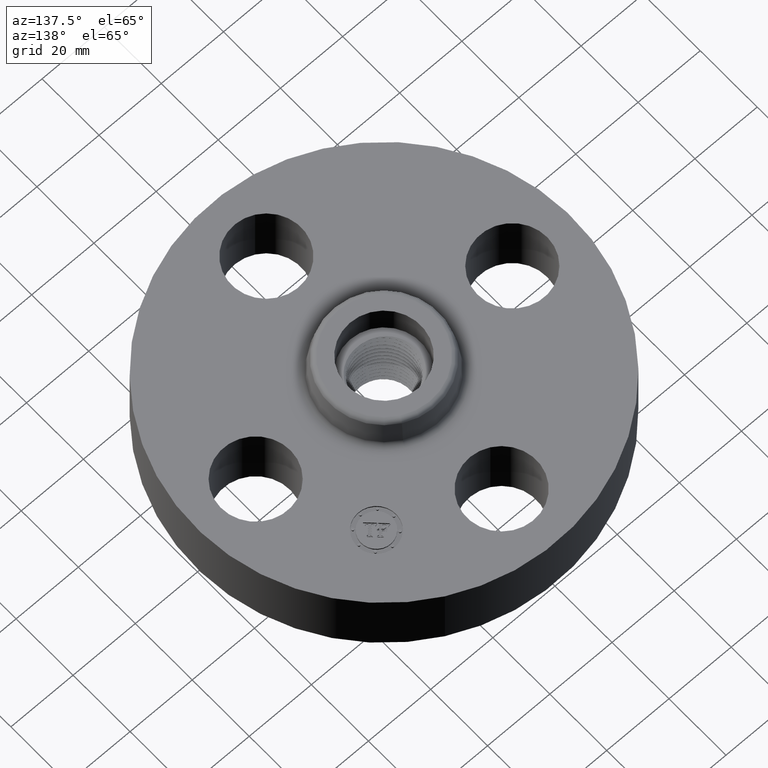
[diagram: clean part render]
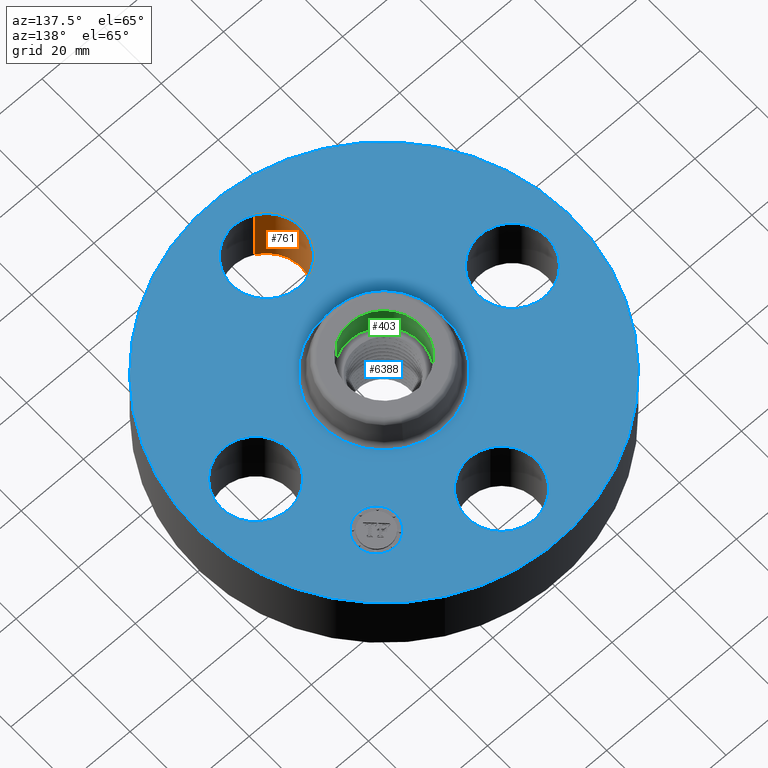
[diagram: same view with three faces highlighted in distinct colors, each labeled with its STEP entity id]
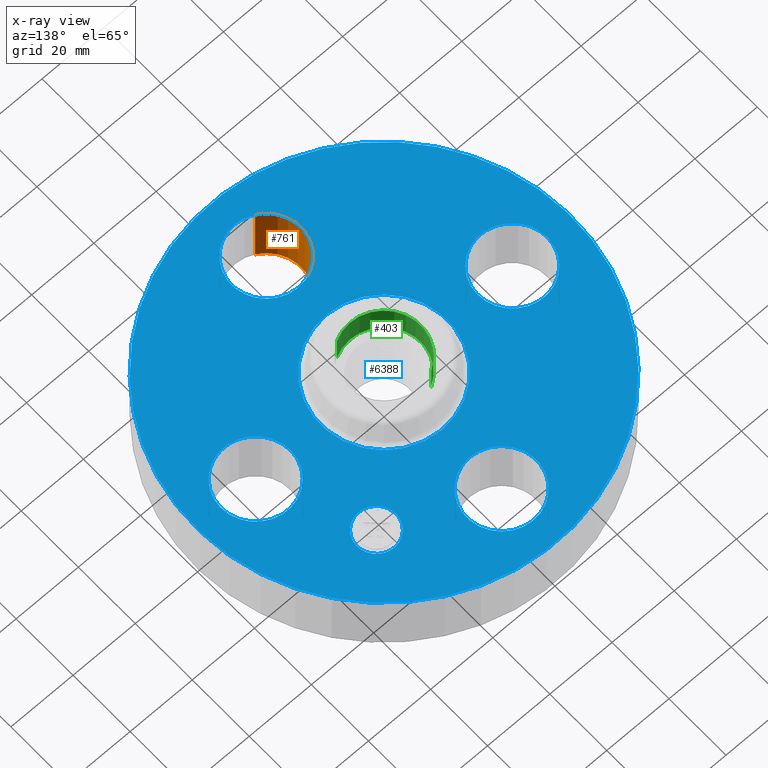
[diagram: x-ray of the same camera — body ghosted, the three highlighted faces saturated]
A machine part, auxiliary view with three faces highlighted in distinct colors.
The next image is the same camera in x-ray (body ghosted, the three faces saturated) — at least one of them is partly hidden behind the body in this view.
Their STEP definitions:

[orange] entity #761 — the highlighted cylindrical surface (partial cylindrical patch) has radius 11.176 mm, axis along (0, -0, -1).
#317=AXIS2_PLACEMENT_3D('Circle Axis2P3D',#315,#316,$) ;
#722=AXIS2_PLACEMENT_3D('Cylinder Axis2P3D',#719,#720,#721) ;
#752=AXIS2_PLACEMENT_3D('Circle Axis2P3D',#750,#751,$) ;
#310=CARTESIAN_POINT('Vertex',(0.210947236987,-1.23886367277,0.)) ;
#312=CARTESIAN_POINT('Vertex',(-0.210947236987,-2.01113632724,0.)) ;
#315=CARTESIAN_POINT('Axis2P3D Location',(-3.1470888887E-016,-1.62500000001,0.)) ;
#719=CARTESIAN_POINT('Axis2P3D Location',(-1.8023868212E-016,-1.62500000001,0.87606299213)) ;
#724=CARTESIAN_POINT('Line Origine',(0.210947236987,-1.23886367277,0.440000000002)) ;
#728=CARTESIAN_POINT('Vertex',(0.210947236987,-1.23886367277,0.880000000004)) ;
#731=CARTESIAN_POINT('Line Origine',(-0.210947236987,-2.01113632724,0.440000000002)) ;
#735=CARTESIAN_POINT('Vertex',(-0.210947236987,-2.01113632724,0.880000000004)) ;
#750=CARTESIAN_POINT('Axis2P3D Location',(-1.8023868212E-016,-1.62500000001,0.880000000004)) ;
#316=DIRECTION('Axis2P3D Direction',(0.,0.,-0.0393700787402)) ;
#720=DIRECTION('Axis2P3D Direction',(0.,-0.,-0.0393700787402)) ;
#721=DIRECTION('Axis2P3D XDirection',(-0.0188750212049,-0.0345504945626,0.)) ;
#725=DIRECTION('Vector Direction',(0.,0.,-0.0393700787402)) ;
#732=DIRECTION('Vector Direction',(0.,0.,-0.0393700787402)) ;
#751=DIRECTION('Axis2P3D Direction',(0.,-0.,-0.0393700787402)) ;
#726=VECTOR('Line Direction',#725,0.0393700787402) ;
#733=VECTOR('Line Direction',#732,0.0393700787402) ;
#756=ORIENTED_EDGE('',*,*,#737,.F.) ;
#757=ORIENTED_EDGE('',*,*,#319,.T.) ;
#758=ORIENTED_EDGE('',*,*,#730,.T.) ;
#759=ORIENTED_EDGE('',*,*,#754,.F.) ;
#761=ADVANCED_FACE('PartBody',(#760),#723,.F.) ;
#318=CIRCLE('generated circle',#317,0.440000000002) ;
#753=CIRCLE('generated circle',#752,0.440000000002) ;
#723=CYLINDRICAL_SURFACE('generated cylinder',#722,0.440000000002) ;
#319=EDGE_CURVE('',#313,#311,#318,.T.) ;
#730=EDGE_CURVE('',#311,#729,#727,.F.) ;
#737=EDGE_CURVE('',#313,#736,#734,.F.) ;
#754=EDGE_CURVE('',#736,#729,#753,.T.) ;
#755=EDGE_LOOP('',(#756,#757,#758,#759)) ;
#760=FACE_OUTER_BOUND('',#755,.T.) ;
#727=LINE('Line',#724,#726) ;
#734=LINE('Line',#731,#733) ;
#311=VERTEX_POINT('',#310) ;
#313=VERTEX_POINT('',#312) ;
#729=VERTEX_POINT('',#728) ;
#736=VERTEX_POINT('',#735) ;

[blue] entity #6388 — the highlighted planar face has unit normal (0, 0, -1).
#425=AXIS2_PLACEMENT_3D('Circle Axis2P3D',#423,#424,$) ;
#437=AXIS2_PLACEMENT_3D('Circle Axis2P3D',#435,#436,$) ;
#461=AXIS2_PLACEMENT_3D('Circle Axis2P3D',#459,#460,$) ;
#480=AXIS2_PLACEMENT_3D('Circle Axis2P3D',#478,#479,$) ;
#497=AXIS2_PLACEMENT_3D('Circle Axis2P3D',#495,#496,$) ;
#532=AXIS2_PLACEMENT_3D('Circle Axis2P3D',#530,#531,$) ;
#654=AXIS2_PLACEMENT_3D('Circle Axis2P3D',#652,#653,$) ;
#666=AXIS2_PLACEMENT_3D('Circle Axis2P3D',#664,#665,$) ;
#697=AXIS2_PLACEMENT_3D('Circle Axis2P3D',#695,#696,$) ;
#709=AXIS2_PLACEMENT_3D('Circle Axis2P3D',#707,#708,$) ;
#740=AXIS2_PLACEMENT_3D('Circle Axis2P3D',#738,#739,$) ;
#752=AXIS2_PLACEMENT_3D('Circle Axis2P3D',#750,#751,$) ;
#6344=AXIS2_PLACEMENT_3D('Plane Axis2P3D',#6341,#6342,#6343) ;
#6372=AXIS2_PLACEMENT_3D('Circle Axis2P3D',#6370,#6371,$) ;
#6381=AXIS2_PLACEMENT_3D('Circle Axis2P3D',#6379,#6380,$) ;
#413=CARTESIAN_POINT('Vertex',(1.23886367277,0.210947236987,0.880000000004)) ;
#420=CARTESIAN_POINT('Vertex',(2.01113632724,-0.210947236987,0.880000000004)) ;
#423=CARTESIAN_POINT('Axis2P3D Location',(1.62500000001,0.,0.880000000004)) ;
#435=CARTESIAN_POINT('Axis2P3D Location',(1.62500000001,0.,0.880000000004)) ;
#456=CARTESIAN_POINT('Vertex',(1.13863565419,2.0842585845,0.880000000004)) ;
#459=CARTESIAN_POINT('Axis2P3D Location',(0.,0.,0.880000000004)) ;
#463=CARTESIAN_POINT('Vertex',(-1.13863565419,-2.0842585845,0.880000000004)) ;
#478=CARTESIAN_POINT('Axis2P3D Location',(0.,0.,0.880000000004)) ;
#495=CARTESIAN_POINT('Axis2P3D Location',(0.,0.,0.880000000004)) ;
#499=CARTESIAN_POINT('Vertex',(0.383706301512,0.702369673661,0.880000000004)) ;
#501=CARTESIAN_POINT('Vertex',(-0.383706301512,-0.702369673661,0.880000000004)) ;
#530=CARTESIAN_POINT('Axis2P3D Location',(0.,0.,0.880000000004)) ;
#642=CARTESIAN_POINT('Vertex',(-0.210947236987,1.23886367277,0.880000000004)) ;
#649=CARTESIAN_POINT('Vertex',(0.210947236987,2.01113632724,0.880000000004)) ;
#652=CARTESIAN_POINT('Axis2P3D Location',(-2.98507657293E-016,1.62500000001,0.880000000004)) ;
#664=CARTESIAN_POINT('Axis2P3D Location',(-2.98507657293E-016,1.62500000001,0.880000000004)) ;
#685=CARTESIAN_POINT('Vertex',(-1.23886367277,-0.210947236987,0.880000000004)) ;
#692=CARTESIAN_POINT('Vertex',(-2.01113632724,0.210947236987,0.880000000004)) ;
#695=CARTESIAN_POINT('Axis2P3D Location',(-1.62500000001,-1.99005104862E-016,0.880000000004)) ;
#707=CARTESIAN_POINT('Axis2P3D Location',(-1.62500000001,-1.99005104862E-016,0.880000000004)) ;
#728=CARTESIAN_POINT('Vertex',(0.210947236987,-1.23886367277,0.880000000004)) ;
#735=CARTESIAN_POINT('Vertex',(-0.210947236987,-2.01113632724,0.880000000004)) ;
#738=CARTESIAN_POINT('Axis2P3D Location',(-1.8023868212E-016,-1.62500000001,0.880000000004)) ;
#750=CARTESIAN_POINT('Axis2P3D Location',(-1.8023868212E-016,-1.62500000001,0.880000000004)) ;
#6341=CARTESIAN_POINT('Axis2P3D Location',(0.,2.37500000001,0.880000000004)) ;
#6370=CARTESIAN_POINT('Axis2P3D Location',(1.14904851943,1.14904851943,0.880000000004)) ;
#6374=CARTESIAN_POINT('Vertex',(0.974039591088,1.32405744778,0.880000000004)) ;
#6376=CARTESIAN_POINT('Vertex',(1.32405744778,0.974039591088,0.880000000004)) ;
#6379=CARTESIAN_POINT('Axis2P3D Location',(1.14904851943,1.14904851943,0.880000000004)) ;
#424=DIRECTION('Axis2P3D Direction',(0.,-0.,-0.0393700787402)) ;
#436=DIRECTION('Axis2P3D Direction',(0.,-0.,-0.0393700787402)) ;
#460=DIRECTION('Axis2P3D Direction',(0.,0.,-0.0393700787402)) ;
#479=DIRECTION('Axis2P3D Direction',(0.,0.,-0.0393700787402)) ;
#496=DIRECTION('Axis2P3D Direction',(0.,0.,-0.0393700787402)) ;
#531=DIRECTION('Axis2P3D Direction',(0.,0.,-0.0393700787402)) ;
#653=DIRECTION('Axis2P3D Direction',(0.,0.,-0.0393700787402)) ;
#665=DIRECTION('Axis2P3D Direction',(0.,0.,-0.0393700787402)) ;
#696=DIRECTION('Axis2P3D Direction',(-0.,0.,-0.0393700787402)) ;
#708=DIRECTION('Axis2P3D Direction',(-0.,0.,-0.0393700787402)) ;
#739=DIRECTION('Axis2P3D Direction',(0.,-0.,-0.0393700787402)) ;
#751=DIRECTION('Axis2P3D Direction',(0.,-0.,-0.0393700787402)) ;
#6342=DIRECTION('Axis2P3D Direction',(0.,0.,-0.0393700787402)) ;
#6343=DIRECTION('Axis2P3D XDirection',(0.0393700787402,0.,0.)) ;
#6371=DIRECTION('Axis2P3D Direction',(0.,0.,-0.0393700787402)) ;
#6380=DIRECTION('Axis2P3D Direction',(0.,0.,-0.0393700787402)) ;
#6347=ORIENTED_EDGE('',*,*,#465,.F.) ;
#6348=ORIENTED_EDGE('',*,*,#482,.F.) ;
#6351=ORIENTED_EDGE('',*,*,#427,.T.) ;
#6352=ORIENTED_EDGE('',*,*,#439,.T.) ;
#6355=ORIENTED_EDGE('',*,*,#534,.T.) ;
#6356=ORIENTED_EDGE('',*,*,#503,.T.) ;
#6359=ORIENTED_EDGE('',*,*,#754,.T.) ;
#6360=ORIENTED_EDGE('',*,*,#742,.T.) ;
#6363=ORIENTED_EDGE('',*,*,#711,.T.) ;
#6364=ORIENTED_EDGE('',*,*,#699,.T.) ;
#6367=ORIENTED_EDGE('',*,*,#668,.T.) ;
#6368=ORIENTED_EDGE('',*,*,#656,.T.) ;
#6385=ORIENTED_EDGE('',*,*,#6378,.T.) ;
#6386=ORIENTED_EDGE('',*,*,#6383,.T.) ;
#6353=FACE_BOUND('',#6350,.T.) ;
#6357=FACE_BOUND('',#6354,.T.) ;
#6361=FACE_BOUND('',#6358,.T.) ;
#6365=FACE_BOUND('',#6362,.T.) ;
#6369=FACE_BOUND('',#6366,.T.) ;
#6387=FACE_BOUND('',#6384,.T.) ;
#6388=ADVANCED_FACE('PartBody',(#6349,#6353,#6357,#6361,#6365,#6369,#6387),#6345,.F.) ;
#426=CIRCLE('generated circle',#425,0.440000000002) ;
#438=CIRCLE('generated circle',#437,0.440000000002) ;
#462=CIRCLE('generated circle',#461,2.37500000001) ;
#481=CIRCLE('generated circle',#480,2.37500000001) ;
#498=CIRCLE('generated circle',#497,0.800345977874) ;
#533=CIRCLE('generated circle',#532,0.800345977874) ;
#655=CIRCLE('generated circle',#654,0.440000000002) ;
#667=CIRCLE('generated circle',#666,0.440000000002) ;
#698=CIRCLE('generated circle',#697,0.440000000002) ;
#710=CIRCLE('generated circle',#709,0.440000000002) ;
#741=CIRCLE('generated circle',#740,0.440000000002) ;
#753=CIRCLE('generated circle',#752,0.440000000002) ;
#6373=CIRCLE('generated circle',#6372,0.247500000001) ;
#6382=CIRCLE('generated circle',#6381,0.247500000001) ;
#427=EDGE_CURVE('',#414,#421,#426,.T.) ;
#439=EDGE_CURVE('',#421,#414,#438,.T.) ;
#465=EDGE_CURVE('',#457,#464,#462,.T.) ;
#482=EDGE_CURVE('',#464,#457,#481,.T.) ;
#503=EDGE_CURVE('',#500,#502,#498,.T.) ;
#534=EDGE_CURVE('',#502,#500,#533,.T.) ;
#656=EDGE_CURVE('',#643,#650,#655,.T.) ;
#668=EDGE_CURVE('',#650,#643,#667,.T.) ;
#699=EDGE_CURVE('',#686,#693,#698,.T.) ;
#711=EDGE_CURVE('',#693,#686,#710,.T.) ;
#742=EDGE_CURVE('',#729,#736,#741,.T.) ;
#754=EDGE_CURVE('',#736,#729,#753,.T.) ;
#6378=EDGE_CURVE('',#6375,#6377,#6373,.T.) ;
#6383=EDGE_CURVE('',#6377,#6375,#6382,.T.) ;
#6346=EDGE_LOOP('',(#6347,#6348)) ;
#6350=EDGE_LOOP('',(#6351,#6352)) ;
#6354=EDGE_LOOP('',(#6355,#6356)) ;
#6358=EDGE_LOOP('',(#6359,#6360)) ;
#6362=EDGE_LOOP('',(#6363,#6364)) ;
#6366=EDGE_LOOP('',(#6367,#6368)) ;
#6384=EDGE_LOOP('',(#6385,#6386)) ;
#6349=FACE_OUTER_BOUND('',#6346,.T.) ;
#6345=PLANE('',#6344) ;
#414=VERTEX_POINT('',#413) ;
#421=VERTEX_POINT('',#420) ;
#457=VERTEX_POINT('',#456) ;
#464=VERTEX_POINT('',#463) ;
#500=VERTEX_POINT('',#499) ;
#502=VERTEX_POINT('',#501) ;
#643=VERTEX_POINT('',#642) ;
#650=VERTEX_POINT('',#649) ;
#686=VERTEX_POINT('',#685) ;
#693=VERTEX_POINT('',#692) ;
#729=VERTEX_POINT('',#728) ;
#736=VERTEX_POINT('',#735) ;
#6375=VERTEX_POINT('',#6374) ;
#6377=VERTEX_POINT('',#6376) ;

[green] entity #403 — the highlighted cylindrical surface (partial cylindrical patch) has radius 11.811 mm, axis along (0, 0, 1).
#42=AXIS2_PLACEMENT_3D('Circle Axis2P3D',#40,#41,$) ;
#364=AXIS2_PLACEMENT_3D('Cylinder Axis2P3D',#361,#362,#363) ;
#394=AXIS2_PLACEMENT_3D('Circle Axis2P3D',#392,#393,$) ;
#40=CARTESIAN_POINT('Axis2P3D Location',(0.,0.,0.880000000004)) ;
#44=CARTESIAN_POINT('Vertex',(-0.222932875452,0.408075891281,0.880000000004)) ;
#46=CARTESIAN_POINT('Vertex',(0.222932875452,-0.408075891281,0.880000000004)) ;
#361=CARTESIAN_POINT('Axis2P3D Location',(0.,0.,0.880000000004)) ;
#370=CARTESIAN_POINT('Vertex',(-0.222932875452,0.408075891281,1.25000000001)) ;
#372=CARTESIAN_POINT('Vertex',(0.222932875452,-0.408075891281,1.25000000001)) ;
#375=CARTESIAN_POINT('Line Origine',(-0.222932875452,0.408075891281,1.065)) ;
#380=CARTESIAN_POINT('Line Origine',(0.222932875452,-0.408075891281,1.065)) ;
#392=CARTESIAN_POINT('Axis2P3D Location',(0.,0.,1.25000000001)) ;
#41=DIRECTION('Axis2P3D Direction',(0.,0.,0.0393700787402)) ;
#362=DIRECTION('Axis2P3D Direction',(0.,0.,0.0393700787402)) ;
#363=DIRECTION('Axis2P3D XDirection',(-0.0188750212049,0.0345504945626,0.)) ;
#376=DIRECTION('Vector Direction',(0.,0.,0.0393700787402)) ;
#381=DIRECTION('Vector Direction',(0.,0.,0.0393700787402)) ;
#393=DIRECTION('Axis2P3D Direction',(0.,0.,0.0393700787402)) ;
#377=VECTOR('Line Direction',#376,0.0393700787402) ;
#382=VECTOR('Line Direction',#381,0.0393700787402) ;
#398=ORIENTED_EDGE('',*,*,#396,.F.) ;
#399=ORIENTED_EDGE('',*,*,#384,.F.) ;
#400=ORIENTED_EDGE('',*,*,#48,.F.) ;
#401=ORIENTED_EDGE('',*,*,#379,.T.) ;
#403=ADVANCED_FACE('PartBody',(#402),#365,.F.) ;
#43=CIRCLE('generated circle',#42,0.465000000002) ;
#395=CIRCLE('generated circle',#394,0.465000000002) ;
#365=CYLINDRICAL_SURFACE('generated cylinder',#364,0.465000000002) ;
#48=EDGE_CURVE('',#45,#47,#43,.T.) ;
#379=EDGE_CURVE('',#45,#371,#378,.T.) ;
#384=EDGE_CURVE('',#47,#373,#383,.T.) ;
#396=EDGE_CURVE('',#373,#371,#395,.F.) ;
#397=EDGE_LOOP('',(#398,#399,#400,#401)) ;
#402=FACE_OUTER_BOUND('',#397,.T.) ;
#378=LINE('Line',#375,#377) ;
#383=LINE('Line',#380,#382) ;
#45=VERTEX_POINT('',#44) ;
#47=VERTEX_POINT('',#46) ;
#371=VERTEX_POINT('',#370) ;
#373=VERTEX_POINT('',#372) ;